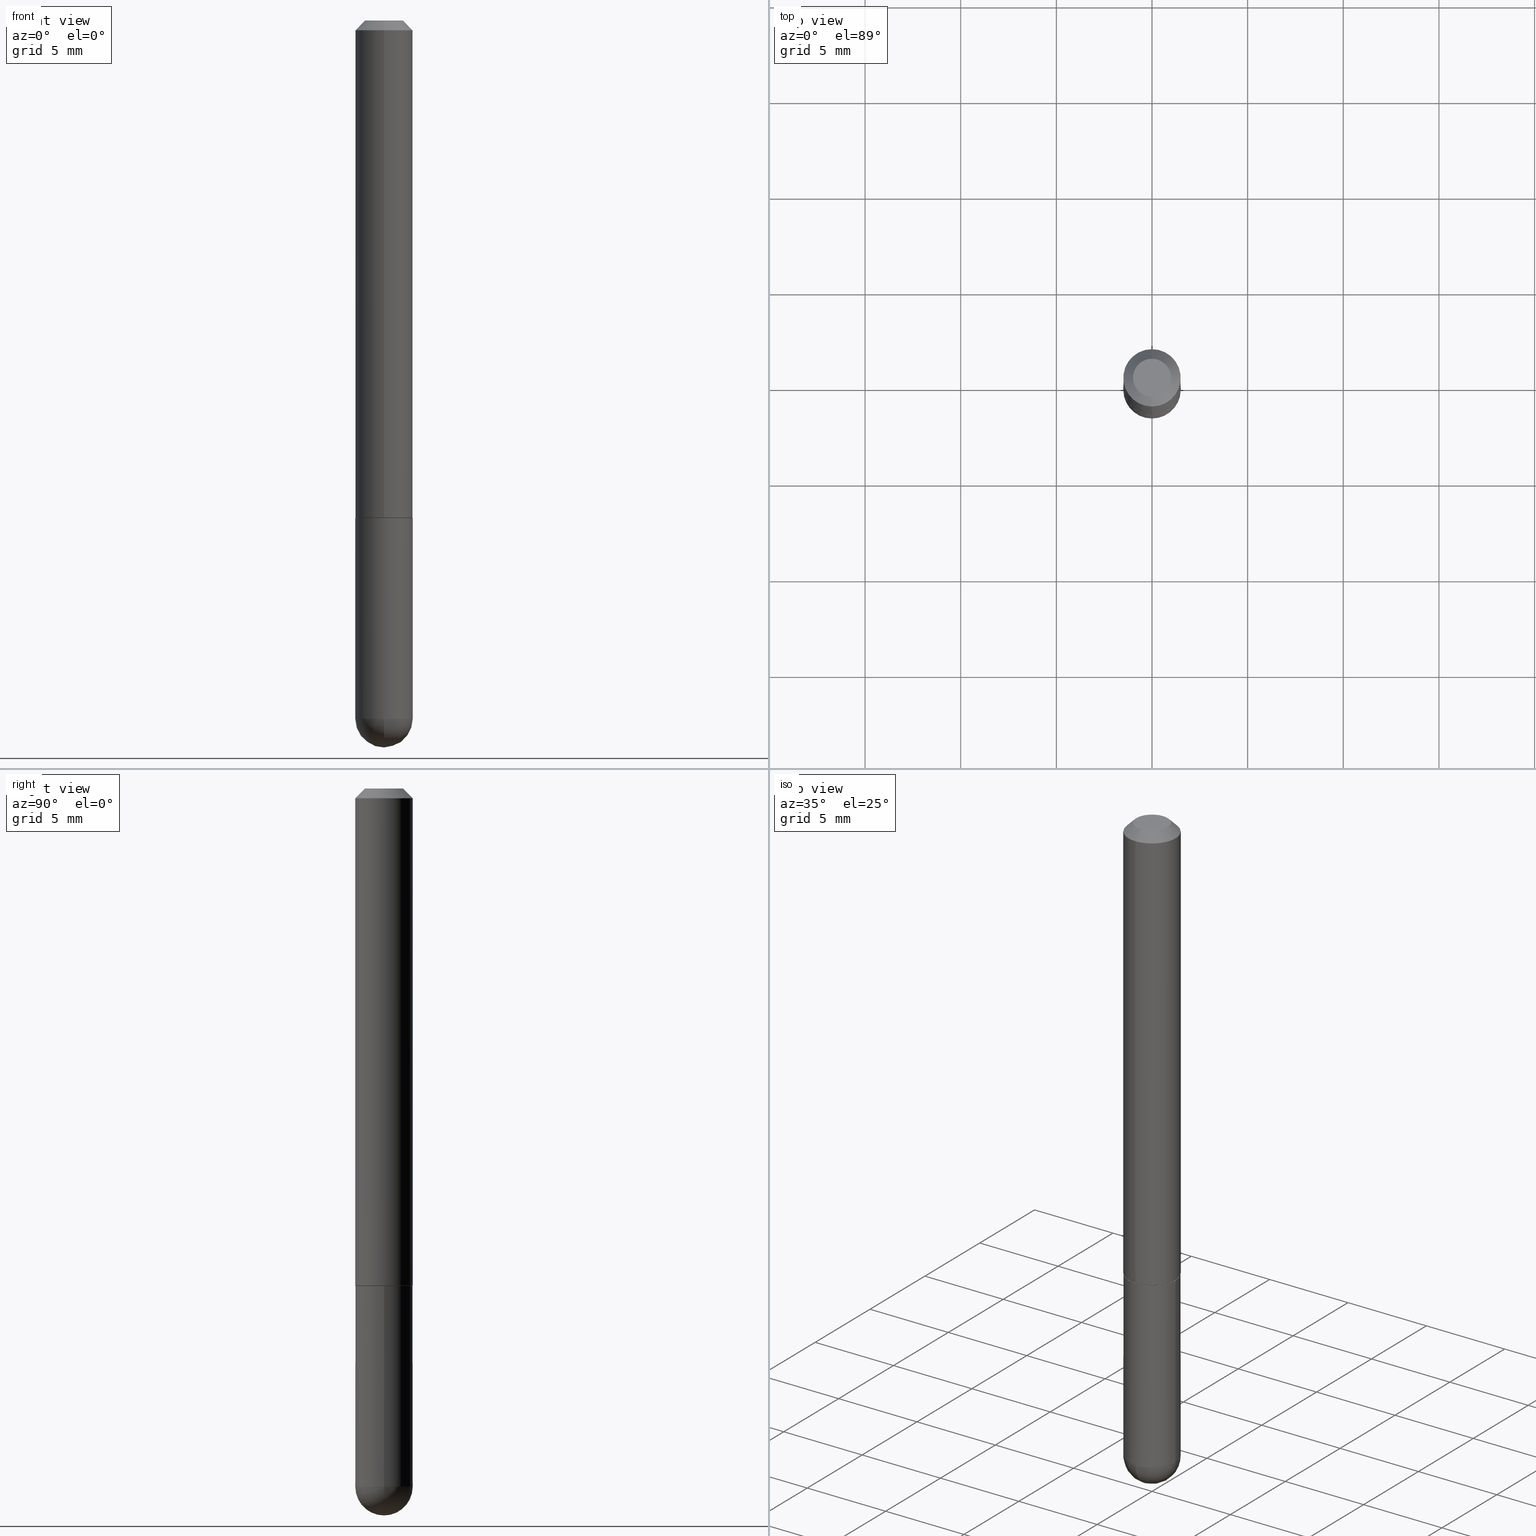
[diagram: canonical four-view strip — front | top / right | iso, engineering-drawing reading convention]
A machine part, canonical four-view strip (front | top / right | iso — engineering-drawing reading convention). The complete STEP part file that produces these views, byte-faithful:
ISO-10303-21;
HEADER;
FILE_DESCRIPTION (( 'STEP AP203' ),
    '1' );
FILE_NAME ('48824.STEP',
    '2024-04-10T12:02:30',
    ( '' ),
    ( '' ),
    'SwSTEP 2.0',
    'SolidWorks 2023',
    '' );
FILE_SCHEMA (( 'CONFIG_CONTROL_DESIGN' ));
ENDSEC;

DATA;
#1 = CARTESIAN_POINT ( 'NONE',  ( 4.930602476117926847E-31, -6.926160335215854735E-17, -0.02000000000000006981 ) ) ;
#2 = EDGE_CURVE ( 'NONE', #19, #89, #170, .T. ) ;
#3 = LINE ( 'NONE', #385, #8 ) ;
#4 = EDGE_LOOP ( 'NONE', ( #209, #355, #387, #304 ) ) ;
#5 = CONICAL_SURFACE ( 'NONE', #397, 0.05905000000000001914, 0.7853981633974467247 ) ;
#6 = CC_DESIGN_PERSON_AND_ORGANIZATION_ASSIGNMENT ( #84, #183, ( #86 ) ) ;
#7 = CARTESIAN_POINT ( 'NONE',  ( 2.521263576162892590E-29, -3.541692087412614513E-15, -1.022699999999999720 ) ) ;
#8 = VECTOR ( 'NONE', #266, 39.37007874015748143 ) ;
#9 = CARTESIAN_POINT ( 'NONE',  ( 0.000000000000000000, 0.000000000000000000, 0.000000000000000000 ) ) ;
#10 = ORIENTED_EDGE ( 'NONE', *, *, #254, .F. ) ;
#11 = EDGE_CURVE ( 'NONE', #271, #217, #134, .T. ) ;
#12 = CARTESIAN_POINT ( 'NONE',  ( 2.523728877400952113E-29, -3.545155167580223098E-15, -1.023699999999999832 ) ) ;
#13 = ORIENTED_EDGE ( 'NONE', *, *, #384, .F. ) ;
#14 = DIRECTION ( 'NONE',  ( -2.465301238058955103E-29, 3.463080167607916397E-15, 1.000000000000000000 ) ) ;
#15 = CONICAL_SURFACE ( 'NONE', #288, 0.05804999999999999050, 0.7853981633974824739 ) ;
#16 = AXIS2_PLACEMENT_3D ( 'NONE', #144, #28, #20 ) ;
#17 = VERTEX_POINT ( 'NONE', #336 ) ;
#18 = DIRECTION ( 'NONE',  ( 0.000000000000000000, 0.000000000000000000, 1.000000000000000000 ) ) ;
#19 = VERTEX_POINT ( 'NONE', #186 ) ;
#20 = DIRECTION ( 'NONE',  ( -6.982962677686265922E-15, -1.000000000000000000, 3.463080167607915214E-15 ) ) ;
#21 = ORIENTED_EDGE ( 'NONE', *, *, #384, .T. ) ;
#22 = CC_DESIGN_PERSON_AND_ORGANIZATION_ASSIGNMENT ( #386, #323, ( #75 ) ) ;
#23 = APPLICATION_PROTOCOL_DEFINITION ( 'international standard', 'config_control_design', 1994, #39 ) ;
#24 = FACE_OUTER_BOUND ( 'NONE', #330, .T. ) ;
#25 = AXIS2_PLACEMENT_3D ( 'NONE', #335, #275, #320 ) ;
#26 = VECTOR ( 'NONE', #249, 39.37007874015748143 ) ;
#27 = PRODUCT_DEFINITION_SHAPE ( 'NONE', 'NONE',  #86 ) ;
#28 = DIRECTION ( 'NONE',  ( -2.465301238058955103E-29, 3.463080167607916003E-15, 1.000000000000000000 ) ) ;
#29 = DIRECTION ( 'NONE',  ( -2.465301238058955103E-29, 3.463080167607916003E-15, 1.000000000000000000 ) ) ;
#30 = DIRECTION ( 'NONE',  ( 2.465301238058955103E-29, -3.463080167607916003E-15, -1.000000000000000000 ) ) ;
#31 = CARTESIAN_POINT ( 'NONE',  ( 3.514260947928350449E-29, -5.017433257984542594E-15, -1.437049999999999939 ) ) ;
#32 = AXIS2_PLACEMENT_3D ( 'NONE', #286, #100, #124 ) ;
#33 = CONICAL_SURFACE ( 'NONE', #368, 0.05804999999999999050, 0.7853981633974824739 ) ;
#34 = CALENDAR_DATE ( 2024, 10, 4 ) ;
#35 = DIRECTION ( 'NONE',  ( 6.982962677686265922E-15, 1.000000000000000000, -3.469747663417776213E-15 ) ) ;
#36 = EDGE_CURVE ( 'NONE', #242, #177, #375, .T. ) ;
#37 = PERSON_AND_ORGANIZATION ( #338, #47 ) ;
#38 = DIRECTION ( 'NONE',  ( -6.982962677686265922E-15, -1.000000000000000000, 3.469747663417776213E-15 ) ) ;
#39 = APPLICATION_CONTEXT ( 'configuration controlled 3d designs of mechanical parts and assemblies' ) ;
#40 = CIRCLE ( 'NONE', #16, 0.03904999999999982097 ) ;
#41 = APPROVAL_PERSON_ORGANIZATION ( #337, #184, #340 ) ;
#42 = ORIENTED_EDGE ( 'NONE', *, *, #260, .F. ) ;
#43 = ADVANCED_FACE ( 'NONE', ( #96 ), #310, .F. ) ;
#44 = PLANE ( 'NONE',  #69 ) ;
#45 = CARTESIAN_POINT ( 'NONE',  ( 0.000000000000000000, 0.000000000000000000, 0.000000000000000000 ) ) ;
#46 = AXIS2_PLACEMENT_3D ( 'NONE', #342, #29, #189 ) ;
#47 = ORGANIZATION ( 'UNSPECIFIED', 'UNSPECIFIED', '' ) ;
#48 = ORIENTED_EDGE ( 'NONE', *, *, #294, .T. ) ;
#49 = EDGE_CURVE ( 'NONE', #401, #403, #256, .T. ) ;
#50 = CARTESIAN_POINT ( 'NONE',  ( 2.523728877400952113E-29, -3.545155167580223098E-15, -1.023699999999999832 ) ) ;
#51 = VERTEX_POINT ( 'NONE', #343 ) ;
#52 = CARTESIAN_POINT ( 'NONE',  ( 4.123439461173991776E-16, 0.05904999999999643867, -1.023700000000000054 ) ) ;
#53 = ORIENTED_EDGE ( 'NONE', *, *, #325, .T. ) ;
#54 = AXIS2_PLACEMENT_3D ( 'NONE', #31, #289, #126 ) ;
#55 = AXIS2_PLACEMENT_3D ( 'NONE', #236, #198, #299 ) ;
#56 = ORIENTED_EDGE ( 'NONE', *, *, #260, .T. ) ;
#57 = PERSON_AND_ORGANIZATION ( #338, #47 ) ;
#58 = ORIENTED_EDGE ( 'NONE', *, *, #156, .T. ) ;
#59 = CARTESIAN_POINT ( 'NONE',  ( 2.726846925636474363E-16, 0.03904999999999982097, -3.974628238619710407E-17 ) ) ;
#60 = CALENDAR_DATE ( 2024, 10, 4 ) ;
#61 = DIRECTION ( 'NONE',  ( 1.000000000000000000, -6.982962677686270655E-15, 0.000000000000000000 ) ) ;
#62 = AXIS2_PLACEMENT_3D ( 'NONE', #193, #68, #61 ) ;
#63 = AXIS2_PLACEMENT_3D ( 'NONE', #7, #135, #391 ) ;
#64 = ADVANCED_FACE ( 'NONE', ( #24 ), #5, .T. ) ;
#65 = CARTESIAN_POINT ( 'NONE',  ( 3.183141170014464762E-29, -5.491615626124592102E-15, -1.437049999999999939 ) ) ;
#66 = CYLINDRICAL_SURFACE ( 'NONE', #239, 0.05905000000000001914 ) ;
#67 = DIRECTION ( 'NONE',  ( -4.851104656540955597E-15, -0.7071067811865487940, -0.7071067811865461294 ) ) ;
#68 = DIRECTION ( 'NONE',  ( -2.445468806185136597E-29, 3.491481338843145583E-15, 1.000000000000000000 ) ) ;
#69 = AXIS2_PLACEMENT_3D ( 'NONE', #52, #82, #362 ) ;
#70 = FACE_OUTER_BOUND ( 'NONE', #106, .T. ) ;
#71 = APPROVAL_DATE_TIME ( #129, #319 ) ;
#72 = ORIENTED_EDGE ( 'NONE', *, *, #307, .F. ) ;
#73 = CIRCLE ( 'NONE', #54, 0.05905000000000001914 ) ;
#74 = ADVANCED_FACE ( 'NONE', ( #282 ), #380, .F. ) ;
#75 = PRODUCT_DEFINITION_FORMATION_WITH_SPECIFIED_SOURCE ( 'ANY', '', #369, .NOT_KNOWN. ) ;
#76 = LINE ( 'NONE', #211, #88 ) ;
#77 = APPLICATION_CONTEXT ( 'configuration controlled 3d designs of mechanical parts and assemblies' ) ;
#78 = CARTESIAN_POINT ( 'NONE',  ( -4.051124067684085231E-16, -0.05905000000000008159, -0.01999999999999986511 ) ) ;
#79 = APPROVAL ( #200, 'UNSPECIFIED' ) ;
#80 = CARTESIAN_POINT ( 'NONE',  ( -4.123439461173744764E-16, -0.05905000000000006771, 2.044948838972476712E-16 ) ) ;
#81 = EDGE_LOOP ( 'NONE', ( #145, #182, #400, #13, #328 ) ) ;
#82 = DIRECTION ( 'NONE',  ( 2.438088387897960049E-29, -3.491481338843145188E-15, -1.000000000000000000 ) ) ;
#83 = ORIENTED_EDGE ( 'NONE', *, *, #163, .F. ) ;
#84 = PERSON_AND_ORGANIZATION ( #338, #47 ) ;
#85 = EDGE_LOOP ( 'NONE', ( #246, #53, #367, #10 ) ) ;
#86 = PRODUCT_DEFINITION ( 'UNKNOWN', '', #75, #176 ) ;
#87 = DIRECTION ( 'NONE',  ( 6.982962677686266711E-15, 1.000000000000000000, 0.000000000000000000 ) ) ;
#88 = VECTOR ( 'NONE', #349, 39.37007874015748854 ) ;
#89 = VERTEX_POINT ( 'NONE', #408 ) ;
#90 = ORIENTED_EDGE ( 'NONE', *, *, #229, .F. ) ;
#91 = CARTESIAN_POINT ( 'NONE',  ( 3.514260947928350449E-29, -5.017433257984542594E-15, -1.437049999999999939 ) ) ;
#92 = DIRECTION ( 'NONE',  ( 6.982962677686265922E-15, 1.000000000000000000, -3.463080167607916397E-15 ) ) ;
#93 = DIRECTION ( 'NONE',  ( 1.000000000000000000, 0.000000000000000000, 0.000000000000000000 ) ) ;
#94 = CARTESIAN_POINT ( 'NONE',  ( 0.05905000000000001914, -4.708175298396508446E-15, -1.437049999999999939 ) ) ;
#95 = APPROVAL_PERSON_ORGANIZATION ( #287, #79, #167 ) ;
#96 = FACE_OUTER_BOUND ( 'NONE', #363, .T. ) ;
#97 = DIRECTION ( 'NONE',  ( 2.465301238058954543E-29, -3.463080167607916397E-15, -1.000000000000000000 ) ) ;
#98 = COORDINATED_UNIVERSAL_TIME_OFFSET ( 5, 0, .BEHIND. ) ;
#99 = ADVANCED_FACE ( 'NONE', ( #258 ), #66, .T. ) ;
#100 = DIRECTION ( 'NONE',  ( -1.000000000000000000, 6.982962677686265922E-15, -4.883557194083112340E-29 ) ) ;
#101 = VECTOR ( 'NONE', #122, 39.37007874015748143 ) ;
#102 = LOCAL_TIME ( 8, 2, 30.00000000000000000, #316 ) ;
#103 = EDGE_LOOP ( 'NONE', ( #137, #56, #277, #366 ) ) ;
#104 = AXIS2_PLACEMENT_3D ( 'NONE', #326, #241, #358 ) ;
#105 = DIRECTION ( 'NONE',  ( 1.000000000000000000, -6.982962677686266711E-15, 4.876176775795935793E-29 ) ) ;
#106 = EDGE_LOOP ( 'NONE', ( #215, #308, #398, #204 ) ) ;
#107 = CARTESIAN_POINT ( 'NONE',  ( -0.05905000000000001914, -3.876255866812795611E-15, -1.023699999999999832 ) ) ;
#108 = DIRECTION ( 'NONE',  ( -6.982962677686265922E-15, -1.000000000000000000, 2.353012914439503496E-15 ) ) ;
#109 = EDGE_LOOP ( 'NONE', ( #72, #360, #139, #251 ) ) ;
#110 = CARTESIAN_POINT ( 'NONE',  ( 0.000000000000000000, 0.000000000000000000, 0.000000000000000000 ) ) ;
#111 = LOCAL_TIME ( 8, 2, 30.00000000000000000, #377 ) ;
#112 = EDGE_LOOP ( 'NONE', ( #172, #233, #147, #280 ) ) ;
#113 = COORDINATED_UNIVERSAL_TIME_OFFSET ( 5, 0, .BEHIND. ) ;
#114 = ORIENTED_EDGE ( 'NONE', *, *, #225, .T. ) ;
#115 = DIRECTION ( 'NONE',  ( 6.982962677686265922E-15, 1.000000000000000000, -4.626330217890349615E-15 ) ) ;
#116 = EDGE_LOOP ( 'NONE', ( #114, #48 ) ) ;
#117 = CARTESIAN_POINT ( 'NONE',  ( 4.160227717875642324E-16, 0.05804999999999644472, -1.023699999999999832 ) ) ;
#118 = AXIS2_PLACEMENT_3D ( 'NONE', #207, #136, #138 ) ;
#119 = EDGE_LOOP ( 'NONE', ( #42, #219, #244, #90 ) ) ;
#120 = DIRECTION ( 'NONE',  ( -6.982962677686265922E-15, -1.000000000000000000, 3.463080167607916397E-15 ) ) ;
#121 = FACE_OUTER_BOUND ( 'NONE', #109, .T. ) ;
#122 = DIRECTION ( 'NONE',  ( -2.445468806185136877E-29, 3.491481338843145188E-15, 1.000000000000000000 ) ) ;
#123 = DIMENSIONAL_EXPONENTS ( 1.000000000000000000, 0.000000000000000000, 0.000000000000000000, 0.000000000000000000, 0.000000000000000000, 0.000000000000000000, 0.000000000000000000 ) ;
#124 = DIRECTION ( 'NONE',  ( 6.982962677686265922E-15, 1.000000000000000000, -4.626330217890349615E-15 ) ) ;
#125 = CALENDAR_DATE ( 2024, 10, 4 ) ;
#126 = DIRECTION ( 'NONE',  ( 1.000000000000000000, -6.982962677686270655E-15, 0.000000000000000000 ) ) ;
#127 = EDGE_CURVE ( 'NONE', #19, #309, #339, .T. ) ;
#128 = CARTESIAN_POINT ( 'NONE',  ( 2.523728877400952113E-29, -3.545155167580223098E-15, -1.023699999999999832 ) ) ;
#129 = DATE_AND_TIME ( #34, #111 ) ;
#130 = DIRECTION ( 'NONE',  ( -6.982962677686265922E-15, -1.000000000000000000, 3.463080167607916003E-15 ) ) ;
#131 = VECTOR ( 'NONE', #67, 39.37007874015748854 ) ;
#132 = AXIS2_PLACEMENT_3D ( 'NONE', #45, #295, #130 ) ;
#133 = EDGE_CURVE ( 'NONE', #17, #271, #150, .T. ) ;
#134 = CIRCLE ( 'NONE', #202, 0.05905000000000001914 ) ;
#135 = DIRECTION ( 'NONE',  ( -2.465301238058955103E-29, 3.463080167607916003E-15, 1.000000000000000000 ) ) ;
#136 = DIRECTION ( 'NONE',  ( -2.445468806185136597E-29, 3.491481338843145583E-15, 1.000000000000000000 ) ) ;
#137 = ORIENTED_EDGE ( 'NONE', *, *, #36, .T. ) ;
#138 = DIRECTION ( 'NONE',  ( 1.000000000000000000, -6.982962677686262766E-15, 0.000000000000000000 ) ) ;
#139 = ORIENTED_EDGE ( 'NONE', *, *, #407, .F. ) ;
#140 = CARTESIAN_POINT ( 'NONE',  ( 3.330070981488499955E-29, -5.694171829508798064E-15, -1.496100000000000207 ) ) ;
#141 = VECTOR ( 'NONE', #324, 39.37007874015748854 ) ;
#142 = EDGE_CURVE ( 'NONE', #17, #51, #312, .T. ) ;
#143 = ORIENTED_EDGE ( 'NONE', *, *, #2, .T. ) ;
#144 = CARTESIAN_POINT ( 'NONE',  ( -4.708084295592962482E-45, 6.613582591769408179E-31, 1.909739963177827947E-16 ) ) ;
#145 = ORIENTED_EDGE ( 'NONE', *, *, #210, .T. ) ;
#146 = SPHERICAL_SURFACE ( 'NONE', #376, 0.05905000000000025506 ) ;
#147 = ORIENTED_EDGE ( 'NONE', *, *, #2, .F. ) ;
#148 = LINE ( 'NONE', #214, #26 ) ;
#149 = SECURITY_CLASSIFICATION ( '', '', #158 ) ;
#150 = LINE ( 'NONE', #159, #131 ) ;
#151 = DIRECTION ( 'NONE',  ( 1.000000000000000000, -6.982962677686270655E-15, 0.000000000000000000 ) ) ;
#152 = DIRECTION ( 'NONE',  ( 1.000000000000000000, -6.982962677686266711E-15, 4.876176775795935793E-29 ) ) ;
#153 = DATE_AND_TIME ( #60, #102 ) ;
#154 = FACE_OUTER_BOUND ( 'NONE', #112, .T. ) ;
#155 = DATE_AND_TIME ( #259, #361 ) ;
#156 = EDGE_CURVE ( 'NONE', #89, #179, #272, .T. ) ;
#157 = DIRECTION ( 'NONE',  ( -6.982962677686265922E-15, -1.000000000000000000, 3.469747663417776213E-15 ) ) ;
#158 = SECURITY_CLASSIFICATION_LEVEL ( 'unclassified' ) ;
#159 = CARTESIAN_POINT ( 'NONE',  ( -4.051124067684085231E-16, -0.05905000000000008159, -0.01999999999999986511 ) ) ;
#160 = APPROVAL_STATUS ( 'not_yet_approved' ) ;
#161 = DIRECTION ( 'NONE',  ( -1.000000000000000000, 7.105427357601001070E-15, -4.926315508542082329E-29 ) ) ;
#162 = ORIENTED_EDGE ( 'NONE', *, *, #127, .F. ) ;
#163 = EDGE_CURVE ( 'NONE', #51, #217, #315, .T. ) ;
#164 = DATE_AND_TIME ( #125, #383 ) ;
#165 = CIRCLE ( 'NONE', #104, 0.05905000000000001914 ) ;
#166 = CC_DESIGN_APPROVAL ( #79, ( #149 ) ) ;
#167 = APPROVAL_ROLE ( '' ) ;
#168 = DIRECTION ( 'NONE',  ( -2.465301238058955103E-29, 3.463080167607916003E-15, 1.000000000000000000 ) ) ;
#169 = CC_DESIGN_DATE_AND_TIME_ASSIGNMENT ( #245, #313, ( #86 ) ) ;
#170 = CIRCLE ( 'NONE', #25, 0.05905000000000001914 ) ;
#171 = LINE ( 'NONE', #274, #141 ) ;
#172 = ORIENTED_EDGE ( 'NONE', *, *, #396, .F. ) ;
#173 = MANIFOLD_SOLID_BREP ( 'Body-Move/Copy2[1]', #265 ) ;
#174 = DIRECTION ( 'NONE',  ( -2.465301238058955103E-29, 3.463080167607916003E-15, 1.000000000000000000 ) ) ;
#175 = MANIFOLD_SOLID_BREP ( 'Body-Move/Copy2[2]', #262 ) ;
#176 = DESIGN_CONTEXT ( 'detailed design', #77, 'design' ) ;
#177 = VERTEX_POINT ( 'NONE', #255 ) ;
#178 = LINE ( 'NONE', #80, #347 ) ;
#179 = VERTEX_POINT ( 'NONE', #94 ) ;
#180 = AXIS2_PLACEMENT_3D ( 'NONE', #9, #230, #105 ) ;
#181 = CARTESIAN_POINT ( 'NONE',  ( 0.000000000000000000, 0.000000000000000000, 0.000000000000000000 ) ) ;
#182 = ORIENTED_EDGE ( 'NONE', *, *, #127, .T. ) ;
#183 = PERSON_AND_ORGANIZATION_ROLE ( 'creator' ) ;
#184 = APPROVAL ( #187, 'UNSPECIFIED' ) ;
#185 = EDGE_LOOP ( 'NONE', ( #393, #371 ) ) ;
#186 = CARTESIAN_POINT ( 'NONE',  ( -0.05905000000000001914, -3.876255866812795611E-15, -1.437049999999999939 ) ) ;
#187 = APPROVAL_STATUS ( 'not_yet_approved' ) ;
#188 = CONICAL_SURFACE ( 'NONE', #55, 0.05905000000000001914, 0.7853981633974467247 ) ;
#189 = DIRECTION ( 'NONE',  ( -6.982962677686265133E-15, -1.000000000000000000, 2.313165108945179540E-15 ) ) ;
#190 =( CONVERSION_BASED_UNIT ( 'INCH', #218 ) LENGTH_UNIT ( ) NAMED_UNIT ( #123 ) );
#191 = CARTESIAN_POINT ( 'NONE',  ( -0.05905000000000001914, 4.195754854663392958E-16, -2.904631170795522943E-30 ) ) ;
#192 = ADVANCED_FACE ( 'NONE', ( #290 ), #15, .T. ) ;
#193 = CARTESIAN_POINT ( 'NONE',  ( 3.514260947928350449E-29, -5.017433257984542594E-15, -1.437049999999999939 ) ) ;
#194 = PERSON_AND_ORGANIZATION_ROLE ( 'creator' ) ;
#195 = AXIS2_PLACEMENT_3D ( 'NONE', #329, #321, #38 ) ;
#196 = CARTESIAN_POINT ( 'NONE',  ( 4.123439461173745750E-16, 0.05904999999999994975, -0.02000000000000027450 ) ) ;
#197 = CIRCLE ( 'NONE', #273, 0.05905000000000001914 ) ;
#198 = DIRECTION ( 'NONE',  ( 2.465301238058955103E-29, -3.463080167607916003E-15, -1.000000000000000000 ) ) ;
#199 = PRODUCT_RELATED_PRODUCT_CATEGORY ( 'detail', '', ( #369 ) ) ;
#200 = APPROVAL_STATUS ( 'not_yet_approved' ) ;
#201 = SHAPE_DEFINITION_REPRESENTATION ( #27, #285 ) ;
#202 = AXIS2_PLACEMENT_3D ( 'NONE', #1, #283, #157 ) ;
#203 = VERTEX_POINT ( 'NONE', #318 ) ;
#204 = ORIENTED_EDGE ( 'NONE', *, *, #229, .T. ) ;
#205 = DIRECTION ( 'NONE',  ( -6.982962677686265922E-15, -1.000000000000000000, 3.463080167607916003E-15 ) ) ;
#206 = ADVANCED_FACE ( 'NONE', ( #154 ), #382, .T. ) ;
#207 = CARTESIAN_POINT ( 'NONE',  ( 2.503426416891723784E-29, -3.574229446573727613E-15, -1.023699999999999832 ) ) ;
#208 = FACE_OUTER_BOUND ( 'NONE', #119, .T. ) ;
#209 = ORIENTED_EDGE ( 'NONE', *, *, #325, .F. ) ;
#210 = EDGE_CURVE ( 'NONE', #238, #19, #73, .T. ) ;
#211 = CARTESIAN_POINT ( 'NONE',  ( -4.053609834396624297E-16, -0.05805000000000352933, -1.023699999999999610 ) ) ;
#212 = UNCERTAINTY_MEASURE_WITH_UNIT (LENGTH_MEASURE( 1.000000000000000082E-05 ), #190, 'distance_accuracy_value', 'NONE');
#213 = ORIENTED_EDGE ( 'NONE', *, *, #11, .T. ) ;
#214 = CARTESIAN_POINT ( 'NONE',  ( 0.05905000000000001914, -4.123439461173741806E-16, 2.879382386107500921E-30 ) ) ;
#215 = ORIENTED_EDGE ( 'NONE', *, *, #133, .F. ) ;
#216 =( LENGTH_UNIT ( ) NAMED_UNIT ( * ) SI_UNIT ( $, .METRE. ) );
#217 = VERTEX_POINT ( 'NONE', #235 ) ;
#218 = LENGTH_MEASURE_WITH_UNIT ( LENGTH_MEASURE( 0.02539999999999999897 ), #216 );
#219 = ORIENTED_EDGE ( 'NONE', *, *, #364, .T. ) ;
#220 = APPLICATION_PROTOCOL_DEFINITION ( 'international standard', 'config_control_design', 1994, #77 ) ;
#221 = DIRECTION ( 'NONE',  ( -6.982962677686265922E-15, -1.000000000000000000, 3.463080167607915214E-15 ) ) ;
#222 = PERSON_AND_ORGANIZATION_ROLE ( 'design_owner' ) ;
#223 = AXIS2_PLACEMENT_3D ( 'NONE', #59, #97, #92 ) ;
#224 = CARTESIAN_POINT ( 'NONE',  ( 2.523728877400952113E-29, -3.545155167580223098E-15, -1.023699999999999832 ) ) ;
#225 = EDGE_CURVE ( 'NONE', #203, #309, #165, .T. ) ;
#226 = DIRECTION ( 'NONE',  ( -2.465301238058954543E-29, 3.463080167607916397E-15, 1.000000000000000000 ) ) ;
#227 = APPROVAL_ROLE ( '' ) ;
#228 = DIRECTION ( 'NONE',  ( -2.465301238058955103E-29, 3.463080167607916003E-15, 1.000000000000000000 ) ) ;
#229 = EDGE_CURVE ( 'NONE', #217, #271, #247, .T. ) ;
#230 = DIRECTION ( 'NONE',  ( -2.445468806185136597E-29, 3.491481338843145583E-15, 1.000000000000000000 ) ) ;
#231 = AXIS2_PLACEMENT_3D ( 'NONE', #12, #168, #399 ) ;
#232 = APPROVAL_DATE_TIME ( #155, #79 ) ;
#233 = ORIENTED_EDGE ( 'NONE', *, *, #307, .T. ) ;
#234 = CIRCLE ( 'NONE', #63, 0.05905000000000013016 ) ;
#235 = CARTESIAN_POINT ( 'NONE',  ( 4.123439461173745750E-16, 0.05904999999999994975, -0.02000000000000027450 ) ) ;
#236 = CARTESIAN_POINT ( 'NONE',  ( 4.930602476117926847E-31, -6.926160335215854735E-17, -0.02000000000000006981 ) ) ;
#237 = FACE_OUTER_BOUND ( 'NONE', #81, .T. ) ;
#238 = VERTEX_POINT ( 'NONE', #263 ) ;
#239 = AXIS2_PLACEMENT_3D ( 'NONE', #373, #252, #152 ) ;
#240 = AXIS2_PLACEMENT_3D ( 'NONE', #181, #18, #93 ) ;
#241 = DIRECTION ( 'NONE',  ( -2.445468806185136597E-29, 3.491481338843145583E-15, 1.000000000000000000 ) ) ;
#242 = VERTEX_POINT ( 'NONE', #270 ) ;
#243 = MECHANICAL_CONTEXT ( 'NONE', #39, 'mechanical' ) ;
#244 = ORIENTED_EDGE ( 'NONE', *, *, #298, .T. ) ;
#245 = DATE_AND_TIME ( #365, #341 ) ;
#246 = ORIENTED_EDGE ( 'NONE', *, *, #49, .T. ) ;
#247 = CIRCLE ( 'NONE', #195, 0.05905000000000001914 ) ;
#248 = ADVANCED_FACE ( 'NONE', ( #237 ), #356, .T. ) ;
#249 = DIRECTION ( 'NONE',  ( -2.445468806185136877E-29, 3.491481338843145188E-15, 1.000000000000000000 ) ) ;
#250 = APPROVAL_PERSON_ORGANIZATION ( #276, #319, #227 ) ;
#251 = ORIENTED_EDGE ( 'NONE', *, *, #156, .F. ) ;
#252 = DIRECTION ( 'NONE',  ( -2.445468806185136597E-29, 3.491481338843145583E-15, 1.000000000000000000 ) ) ;
#253 = CARTESIAN_POINT ( 'NONE',  ( -4.053609834396624297E-16, -0.05805000000000352933, -1.023699999999999610 ) ) ;
#254 = EDGE_CURVE ( 'NONE', #401, #242, #76, .T. ) ;
#255 = CARTESIAN_POINT ( 'NONE',  ( 4.195754854663527557E-16, 0.05904999999999659133, -1.022699999999999942 ) ) ;
#256 = CIRCLE ( 'NONE', #359, 0.05804999999999999050 ) ;
#257 = CC_DESIGN_APPROVAL ( #184, ( #86 ) ) ;
#258 = FACE_OUTER_BOUND ( 'NONE', #333, .T. ) ;
#259 = CALENDAR_DATE ( 2024, 10, 4 ) ;
#260 = EDGE_CURVE ( 'NONE', #177, #217, #3, .T. ) ;
#261 = DIRECTION ( 'NONE',  ( -2.465301238058955103E-29, 3.463080167607916003E-15, 1.000000000000000000 ) ) ;
#262 = CLOSED_SHELL ( 'NONE', ( #192, #322, #64, #350, #311, #370, #43, #74 ) ) ;
#263 = CARTESIAN_POINT ( 'NONE',  ( 4.123439461174084467E-16, 0.05904999999999487742, -1.437050000000000161 ) ) ;
#264 = CC_DESIGN_SECURITY_CLASSIFICATION ( #149, ( #75 ) ) ;
#265 = CLOSED_SHELL ( 'NONE', ( #248, #206, #390, #278, #99 ) ) ;
#266 = DIRECTION ( 'NONE',  ( -2.465301238058955103E-29, 3.463080167607916397E-15, 1.000000000000000000 ) ) ;
#267 = CC_DESIGN_PERSON_AND_ORGANIZATION_ASSIGNMENT ( #57, #222, ( #369 ) ) ;
#268 = FACE_OUTER_BOUND ( 'NONE', #4, .T. ) ;
#269 = ORIENTED_EDGE ( 'NONE', *, *, #142, .F. ) ;
#270 = CARTESIAN_POINT ( 'NONE',  ( -4.123439461173496766E-16, -0.05905000000000366900, -1.022699999999999498 ) ) ;
#271 = VERTEX_POINT ( 'NONE', #78 ) ;
#272 = CIRCLE ( 'NONE', #62, 0.05905000000000001914 ) ;
#273 = AXIS2_PLACEMENT_3D ( 'NONE', #91, #404, #151 ) ;
#274 = CARTESIAN_POINT ( 'NONE',  ( 4.124700581087632353E-16, 0.05804999999999644472, -1.023699999999999832 ) ) ;
#275 = DIRECTION ( 'NONE',  ( -2.445468806185136597E-29, 3.491481338843145583E-15, 1.000000000000000000 ) ) ;
#276 = PERSON_AND_ORGANIZATION ( #338, #47 ) ;
#277 = ORIENTED_EDGE ( 'NONE', *, *, #11, .F. ) ;
#278 = ADVANCED_FACE ( 'NONE', ( #303 ), #44, .F. ) ;
#279 = DIRECTION ( 'NONE',  ( -1.000000000000000000, 6.982962677686265922E-15, -4.883557194083112340E-29 ) ) ;
#280 = ORIENTED_EDGE ( 'NONE', *, *, #210, .F. ) ;
#281 = CIRCLE ( 'NONE', #334, 0.05905000000000025506 ) ;
#282 = FACE_OUTER_BOUND ( 'NONE', #185, .T. ) ;
#283 = DIRECTION ( 'NONE',  ( -2.465301238058955103E-29, 3.463080167607916003E-15, 1.000000000000000000 ) ) ;
#284 = APPROVAL_DATE_TIME ( #153, #184 ) ;
#285 = ADVANCED_BREP_SHAPE_REPRESENTATION ( '48824', ( #173, #175, #240 ), #314 ) ;
#286 = CARTESIAN_POINT ( 'NONE',  ( 3.183141170014464762E-29, -5.491615626124592102E-15, -1.437049999999999939 ) ) ;
#287 = PERSON_AND_ORGANIZATION ( #338, #47 ) ;
#288 = AXIS2_PLACEMENT_3D ( 'NONE', #224, #261, #317 ) ;
#289 = DIRECTION ( 'NONE',  ( -2.445468806185136597E-29, 3.491481338843145583E-15, 1.000000000000000000 ) ) ;
#290 = FACE_OUTER_BOUND ( 'NONE', #85, .T. ) ;
#291 = CC_DESIGN_DATE_AND_TIME_ASSIGNMENT ( #164, #381, ( #149 ) ) ;
#292 = FACE_OUTER_BOUND ( 'NONE', #103, .T. ) ;
#293 = VECTOR ( 'NONE', #406, 39.37007874015748143 ) ;
#294 = EDGE_CURVE ( 'NONE', #309, #203, #296, .T. ) ;
#295 = DIRECTION ( 'NONE',  ( -2.465301238058955103E-29, 3.463080167607916003E-15, 1.000000000000000000 ) ) ;
#296 = CIRCLE ( 'NONE', #118, 0.05905000000000001914 ) ;
#297 = CIRCLE ( 'NONE', #231, 0.05804999999999999050 ) ;
#298 = EDGE_CURVE ( 'NONE', #242, #271, #178, .T. ) ;
#299 = DIRECTION ( 'NONE',  ( 6.982962677686265922E-15, 1.000000000000000000, -3.469747663417776213E-15 ) ) ;
#300 = ORIENTED_EDGE ( 'NONE', *, *, #133, .T. ) ;
#301 = DIRECTION ( 'NONE',  ( -7.105427357601001070E-15, -1.000000000000000000, 0.000000000000000000 ) ) ;
#302 = VERTEX_POINT ( 'NONE', #140 ) ;
#303 = FACE_OUTER_BOUND ( 'NONE', #116, .T. ) ;
#304 = ORIENTED_EDGE ( 'NONE', *, *, #364, .F. ) ;
#305 = AXIS2_PLACEMENT_3D ( 'NONE', #394, #161, #301 ) ;
#306 = DIRECTION ( 'NONE',  ( 1.000000000000000000, -6.982962677686265922E-15, 4.883557194083112340E-29 ) ) ;
#307 = EDGE_CURVE ( 'NONE', #302, #89, #348, .T. ) ;
#308 = ORIENTED_EDGE ( 'NONE', *, *, #379, .F. ) ;
#309 = VERTEX_POINT ( 'NONE', #107 ) ;
#310 = PLANE ( 'NONE',  #353 ) ;
#311 = ADVANCED_FACE ( 'NONE', ( #208 ), #354, .T. ) ;
#312 = CIRCLE ( 'NONE', #395, 0.03904999999999982097 ) ;
#313 = DATE_TIME_ROLE ( 'creation_date' ) ;
#314 =( GEOMETRIC_REPRESENTATION_CONTEXT ( 3 ) GLOBAL_UNCERTAINTY_ASSIGNED_CONTEXT ( ( #212 ) ) GLOBAL_UNIT_ASSIGNED_CONTEXT ( ( #190, #372, #332 ) ) REPRESENTATION_CONTEXT ( 'NONE', 'WORKASPACE' ) );
#315 = LINE ( 'NONE', #196, #293 ) ;
#316 = COORDINATED_UNIVERSAL_TIME_OFFSET ( 5, 0, .BEHIND. ) ;
#317 = DIRECTION ( 'NONE',  ( -6.982962677686265922E-15, -1.000000000000000000, 2.353012914439503496E-15 ) ) ;
#318 = CARTESIAN_POINT ( 'NONE',  ( 0.05905000000000001914, -3.986573392691101744E-15, -1.023699999999999832 ) ) ;
#319 = APPROVAL ( #160, 'UNSPECIFIED' ) ;
#320 = DIRECTION ( 'NONE',  ( 1.000000000000000000, -6.982962677686270655E-15, 0.000000000000000000 ) ) ;
#321 = DIRECTION ( 'NONE',  ( -2.465301238058955103E-29, 3.463080167607916003E-15, 1.000000000000000000 ) ) ;
#322 = ADVANCED_FACE ( 'NONE', ( #292 ), #327, .T. ) ;
#323 = PERSON_AND_ORGANIZATION_ROLE ( 'design_supplier' ) ;
#324 = DIRECTION ( 'NONE',  ( 5.024295867788231995E-15, 0.7071067811865739960, 0.7071067811865208164 ) ) ;
#325 = EDGE_CURVE ( 'NONE', #403, #177, #171, .T. ) ;
#326 = CARTESIAN_POINT ( 'NONE',  ( 2.503426416891723784E-29, -3.574229446573727613E-15, -1.023699999999999832 ) ) ;
#327 = CYLINDRICAL_SURFACE ( 'NONE', #409, 0.05905000000000006771 ) ;
#328 = ORIENTED_EDGE ( 'NONE', *, *, #407, .T. ) ;
#329 = CARTESIAN_POINT ( 'NONE',  ( 4.930602476117926847E-31, -6.926160335215854735E-17, -0.02000000000000006981 ) ) ;
#330 = EDGE_LOOP ( 'NONE', ( #269, #300, #213, #83 ) ) ;
#331 = EDGE_CURVE ( 'NONE', #403, #401, #297, .T. ) ;
#332 =( NAMED_UNIT ( * ) SI_UNIT ( $, .STERADIAN. ) SOLID_ANGLE_UNIT ( ) );
#333 = EDGE_LOOP ( 'NONE', ( #162, #143, #58, #21, #389 ) ) ;
#334 = AXIS2_PLACEMENT_3D ( 'NONE', #402, #306, #87 ) ;
#335 = CARTESIAN_POINT ( 'NONE',  ( 3.514260947928350449E-29, -5.017433257984542594E-15, -1.437049999999999939 ) ) ;
#336 = CARTESIAN_POINT ( 'NONE',  ( -3.365074267906927480E-16, -0.03904999999999982097, 3.262072768628712900E-16 ) ) ;
#337 = PERSON_AND_ORGANIZATION ( #338, #47 ) ;
#338 = PERSON ( 'UNSPECIFIED', 'UNSPECIFIED', 'UNSPECIFIED', ('UNSPECIFIED'), ('UNSPECIFIED'), ('UNSPECIFIED') ) ;
#339 = LINE ( 'NONE', #191, #101 ) ;
#340 = APPROVAL_ROLE ( '' ) ;
#341 = LOCAL_TIME ( 8, 2, 30.00000000000000000, #113 ) ;
#342 = CARTESIAN_POINT ( 'NONE',  ( 2.521263576162892590E-29, -3.541692087412614513E-15, -1.022699999999999720 ) ) ;
#343 = CARTESIAN_POINT ( 'NONE',  ( 3.425143193405110303E-16, 0.03904999999999982097, 5.574071577269431176E-17 ) ) ;
#344 = PERSON_AND_ORGANIZATION_ROLE ( 'classification_officer' ) ;
#345 = CC_DESIGN_PERSON_AND_ORGANIZATION_ASSIGNMENT ( #37, #194, ( #75 ) ) ;
#346 = CARTESIAN_POINT ( 'NONE',  ( 4.930602476117926847E-31, -6.926160335215854735E-17, -0.02000000000000006981 ) ) ;
#347 = VECTOR ( 'NONE', #14, 39.37007874015748143 ) ;
#348 = CIRCLE ( 'NONE', #305, 0.05905000000000025506 ) ;
#349 = DIRECTION ( 'NONE',  ( -4.937700262164715281E-15, -0.7071067811865691111, 0.7071067811865257013 ) ) ;
#350 = ADVANCED_FACE ( 'NONE', ( #70 ), #188, .T. ) ;
#351 = ORIENTED_EDGE ( 'NONE', *, *, #331, .F. ) ;
#352 = ORIENTED_EDGE ( 'NONE', *, *, #49, .F. ) ;
#353 = AXIS2_PLACEMENT_3D ( 'NONE', #378, #226, #120 ) ;
#354 = CYLINDRICAL_SURFACE ( 'NONE', #132, 0.05905000000000006771 ) ;
#355 = ORIENTED_EDGE ( 'NONE', *, *, #331, .T. ) ;
#356 = CYLINDRICAL_SURFACE ( 'NONE', #180, 0.05905000000000001914 ) ;
#357 = CC_DESIGN_PERSON_AND_ORGANIZATION_ASSIGNMENT ( #410, #344, ( #149 ) ) ;
#358 = DIRECTION ( 'NONE',  ( 1.000000000000000000, -6.982962677686262766E-15, 0.000000000000000000 ) ) ;
#359 = AXIS2_PLACEMENT_3D ( 'NONE', #128, #411, #374 ) ;
#360 = ORIENTED_EDGE ( 'NONE', *, *, #396, .T. ) ;
#361 = LOCAL_TIME ( 8, 2, 30.00000000000000000, #98 ) ;
#362 = DIRECTION ( 'NONE',  ( -1.000000000000000000, 6.982962677686265922E-15, -4.876176775795935793E-29 ) ) ;
#363 = EDGE_LOOP ( 'NONE', ( #352, #351 ) ) ;
#364 = EDGE_CURVE ( 'NONE', #177, #242, #234, .T. ) ;
#365 = CALENDAR_DATE ( 2024, 10, 4 ) ;
#366 = ORIENTED_EDGE ( 'NONE', *, *, #298, .F. ) ;
#367 = ORIENTED_EDGE ( 'NONE', *, *, #36, .F. ) ;
#368 = AXIS2_PLACEMENT_3D ( 'NONE', #50, #392, #108 ) ;
#369 = PRODUCT ( '48824', '48824', '', ( #243 ) ) ;
#370 = ADVANCED_FACE ( 'NONE', ( #268 ), #33, .T. ) ;
#371 = ORIENTED_EDGE ( 'NONE', *, *, #142, .T. ) ;
#372 =( NAMED_UNIT ( * ) PLANE_ANGLE_UNIT ( ) SI_UNIT ( $, .RADIAN. ) );
#373 = CARTESIAN_POINT ( 'NONE',  ( 0.000000000000000000, 0.000000000000000000, 0.000000000000000000 ) ) ;
#374 = DIRECTION ( 'NONE',  ( -6.982962677686265922E-15, -1.000000000000000000, 2.353012914439503496E-15 ) ) ;
#375 = CIRCLE ( 'NONE', #46, 0.05905000000000013016 ) ;
#376 = AXIS2_PLACEMENT_3D ( 'NONE', #65, #279, #115 ) ;
#377 = COORDINATED_UNIVERSAL_TIME_OFFSET ( 5, 0, .BEHIND. ) ;
#378 = CARTESIAN_POINT ( 'NONE',  ( 2.523728877400952113E-29, -3.545155167580223098E-15, -1.023699999999999832 ) ) ;
#379 = EDGE_CURVE ( 'NONE', #51, #17, #40, .T. ) ;
#380 = PLANE ( 'NONE',  #223 ) ;
#381 = DATE_TIME_ROLE ( 'classification_date' ) ;
#382 = SPHERICAL_SURFACE ( 'NONE', #32, 0.05905000000000025506 ) ;
#383 = LOCAL_TIME ( 8, 2, 30.00000000000000000, #412 ) ;
#384 = EDGE_CURVE ( 'NONE', #179, #203, #148, .T. ) ;
#385 = CARTESIAN_POINT ( 'NONE',  ( 4.195754854663395916E-16, 0.05905000000000006771, -2.044948838972476712E-16 ) ) ;
#386 = PERSON_AND_ORGANIZATION ( #338, #47 ) ;
#387 = ORIENTED_EDGE ( 'NONE', *, *, #254, .T. ) ;
#388 = CC_DESIGN_APPROVAL ( #319, ( #75 ) ) ;
#389 = ORIENTED_EDGE ( 'NONE', *, *, #294, .F. ) ;
#390 = ADVANCED_FACE ( 'NONE', ( #121 ), #146, .T. ) ;
#391 = DIRECTION ( 'NONE',  ( -6.982962677686265133E-15, -1.000000000000000000, 2.313165108945179540E-15 ) ) ;
#392 = DIRECTION ( 'NONE',  ( -2.465301238058955103E-29, 3.463080167607916003E-15, 1.000000000000000000 ) ) ;
#393 = ORIENTED_EDGE ( 'NONE', *, *, #379, .T. ) ;
#394 = CARTESIAN_POINT ( 'NONE',  ( 3.183141170014464762E-29, -5.491615626124592102E-15, -1.437049999999999939 ) ) ;
#395 = AXIS2_PLACEMENT_3D ( 'NONE', #405, #228, #221 ) ;
#396 = EDGE_CURVE ( 'NONE', #302, #238, #281, .T. ) ;
#397 = AXIS2_PLACEMENT_3D ( 'NONE', #346, #30, #35 ) ;
#398 = ORIENTED_EDGE ( 'NONE', *, *, #163, .T. ) ;
#399 = DIRECTION ( 'NONE',  ( -6.982962677686265922E-15, -1.000000000000000000, 2.353012914439503496E-15 ) ) ;
#400 = ORIENTED_EDGE ( 'NONE', *, *, #225, .F. ) ;
#401 = VERTEX_POINT ( 'NONE', #253 ) ;
#402 = CARTESIAN_POINT ( 'NONE',  ( 3.183141170014464762E-29, -5.491615626124592102E-15, -1.437049999999999939 ) ) ;
#403 = VERTEX_POINT ( 'NONE', #117 ) ;
#404 = DIRECTION ( 'NONE',  ( -2.445468806185136597E-29, 3.491481338843145583E-15, 1.000000000000000000 ) ) ;
#405 = CARTESIAN_POINT ( 'NONE',  ( -4.708084295592962482E-45, 6.613582591769408179E-31, 1.909739963177827947E-16 ) ) ;
#406 = DIRECTION ( 'NONE',  ( 4.937700262164540154E-15, 0.7071067811865440200, -0.7071067811865511255 ) ) ;
#407 = EDGE_CURVE ( 'NONE', #179, #238, #197, .T. ) ;
#408 = CARTESIAN_POINT ( 'NONE',  ( -4.195754854663065087E-16, -0.05905000000000539678, -1.437049999999999716 ) ) ;
#409 = AXIS2_PLACEMENT_3D ( 'NONE', #110, #174, #205 ) ;
#410 = PERSON_AND_ORGANIZATION ( #338, #47 ) ;
#411 = DIRECTION ( 'NONE',  ( -2.465301238058955103E-29, 3.463080167607916003E-15, 1.000000000000000000 ) ) ;
#412 = COORDINATED_UNIVERSAL_TIME_OFFSET ( 5, 0, .BEHIND. ) ;
ENDSEC;
END-ISO-10303-21;
